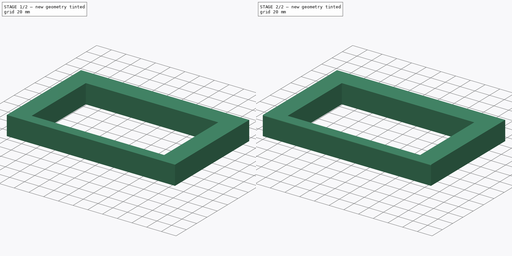
[diagram: build sequence overview — one tinted view per stage of 2, left to right]
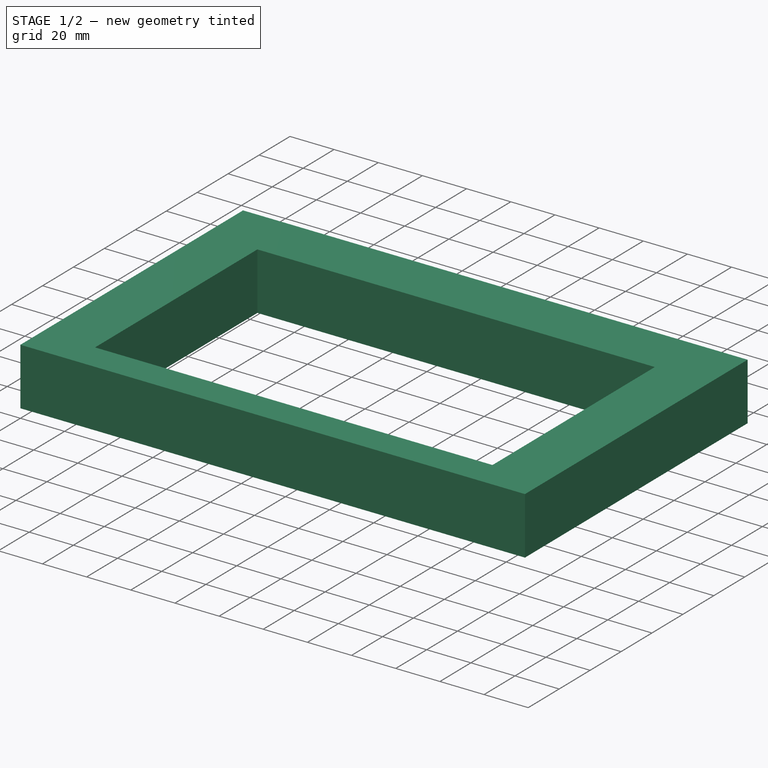
[diagram: stage 1 of 2 — iso view after this stage's code; geometry added in this stage tinted green]
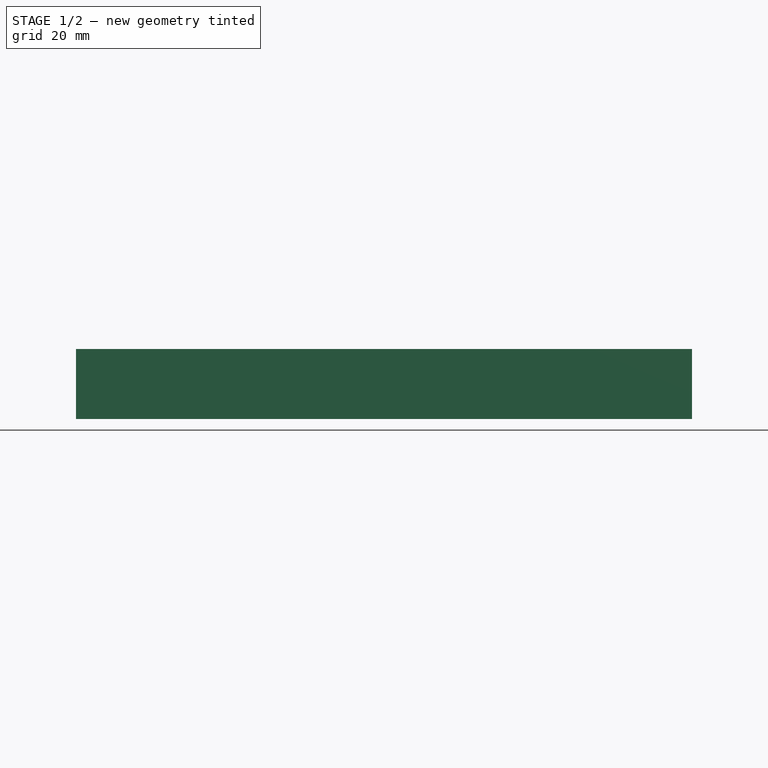
[diagram: stage 1 of 2 — front view after this stage's code; geometry added in this stage tinted green]
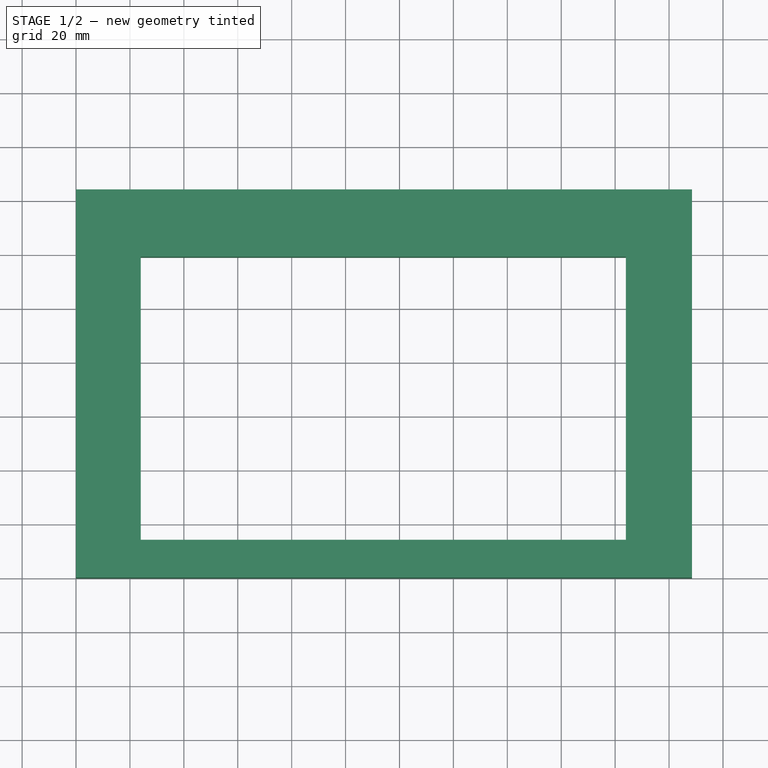
[diagram: stage 1 of 2 — top view after this stage's code; geometry added in this stage tinted green]
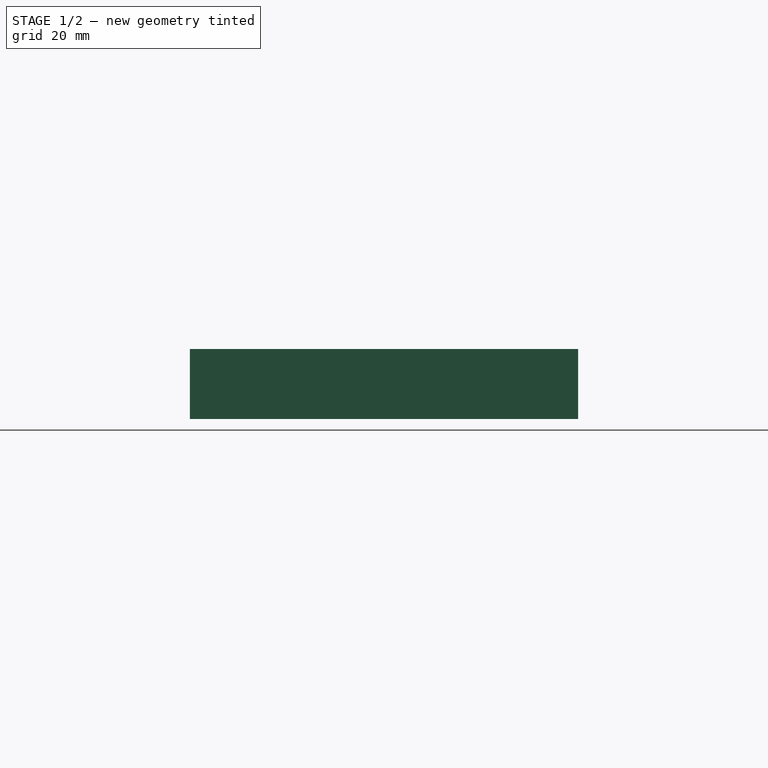
[diagram: stage 1 of 2 — right view after this stage's code; geometry added in this stage tinted green]
FCSTD DOCUMENT  (FreeCAD 0.17R13522 (Git))
Label: BlocGaucheClavierBois
License: All rights reserved
LicenseURL: http://en.wikipedia.org/wiki/All_rights_reserved
objects: Drawing::FeatureViewPython×6, Drawing::FeatureViewPart×3, Sketcher::SketchObject×2, Part::Box×1, PartDesign::Pocket×1, PartDesign::Fillet×1, Drawing::FeatureViewAnnotation×1, Drawing::FeaturePage×1
note: 6 computed .brp shape members not serialized (recipe doc carries the construction recipe); baked Part::Feature solids carry a one-line shape summary decoded from their .brp

FEATURE [Part::Box] Box  label="Cube"
  AttacherType = Attacher::AttachEngine3D
  Height = 26
  Length = 228.5
  Width = 144
FEATURE [Sketcher::SketchObject] Sketch
  MapMode = 5
  Placement = pos=(0,0,0) rot=(1,0,0;3.14159rad)
  Support = -> [Box]
FEATURE [Sketcher::SketchObject] Sketch001
  MapMode = 5
  Placement = pos=(0,0,0) rot=(1,0,0;3.14159rad)
  Support = -> [Box]
  sketch-geometry (4):
    g0: LineSegment StartX=24 StartY=-14 StartZ=0 EndX=204 EndY=-14 EndZ=0
    g1: LineSegment StartX=204 StartY=-14 StartZ=0 EndX=204 EndY=-119 EndZ=0
    g2: LineSegment StartX=204 StartY=-119 StartZ=0 EndX=24 EndY=-119 EndZ=0
    g3: LineSegment StartX=24 StartY=-119 StartZ=0 EndX=24 EndY=-14 EndZ=0
  constraints (12):
    c: Coincident(g0,g1)
    c: Coincident(g1,g2)
    c: Coincident(g2,g3)
    c: Coincident(g3,g0)
    c: Horizontal(g0)
    c: Horizontal(g2)
    c: Vertical(g1)
    c: Vertical(g3)
    c: DistanceY(g0,g-1) = 14
    c: DistanceX(g-1,g0) = 24
    c: DistanceX(g0,g0) = 180
    c: DistanceY(g1,g1) = 105
FEATURE [PartDesign::Pocket] Pocket
  Length = 5
  Length2 = 100
  Profile = -> Sketch001
  Refine = true
  Type = 1
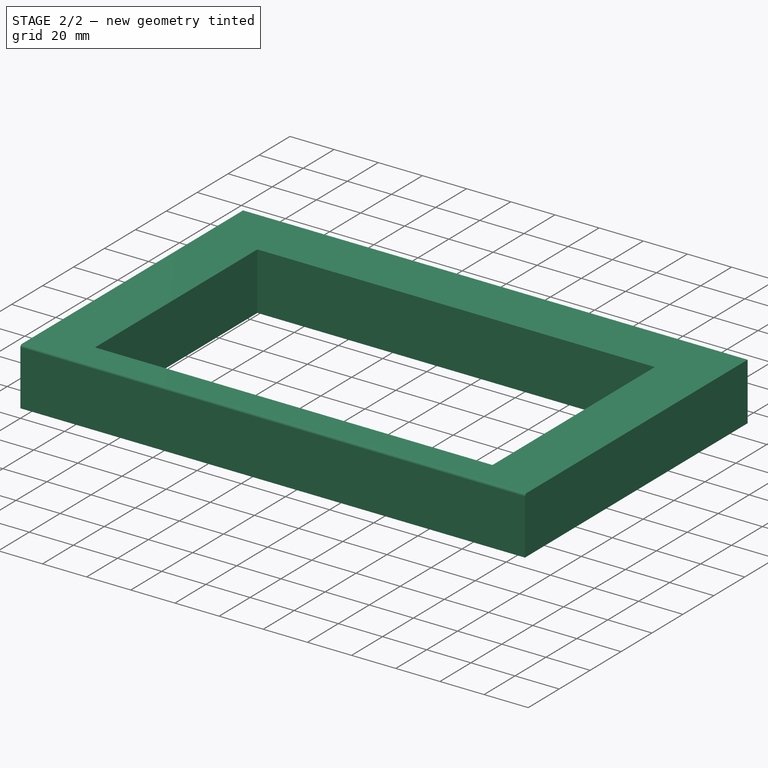
[diagram: stage 2 of 2 — iso view after this stage's code; geometry added in this stage tinted green]
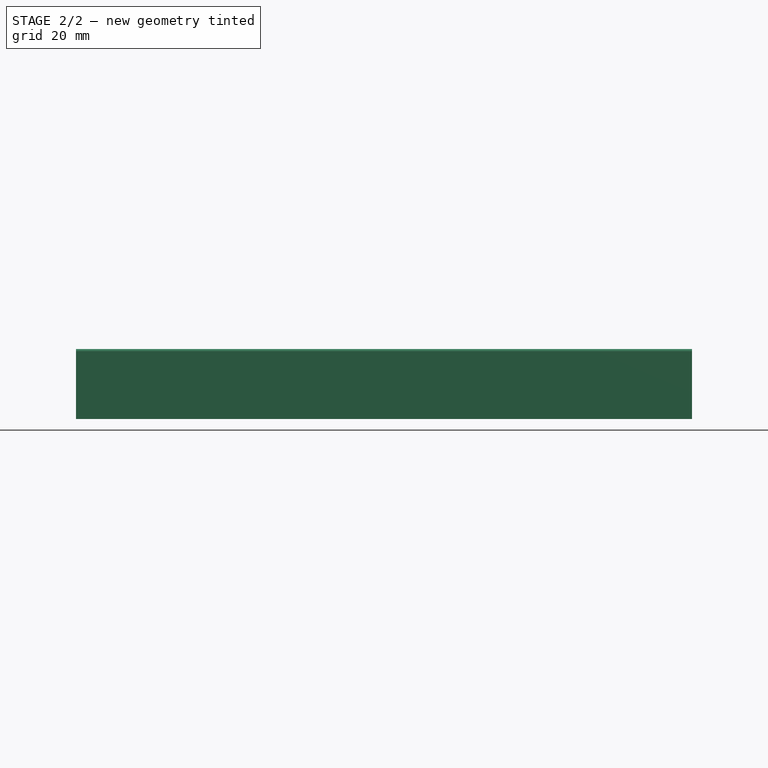
[diagram: stage 2 of 2 — front view after this stage's code; geometry added in this stage tinted green]
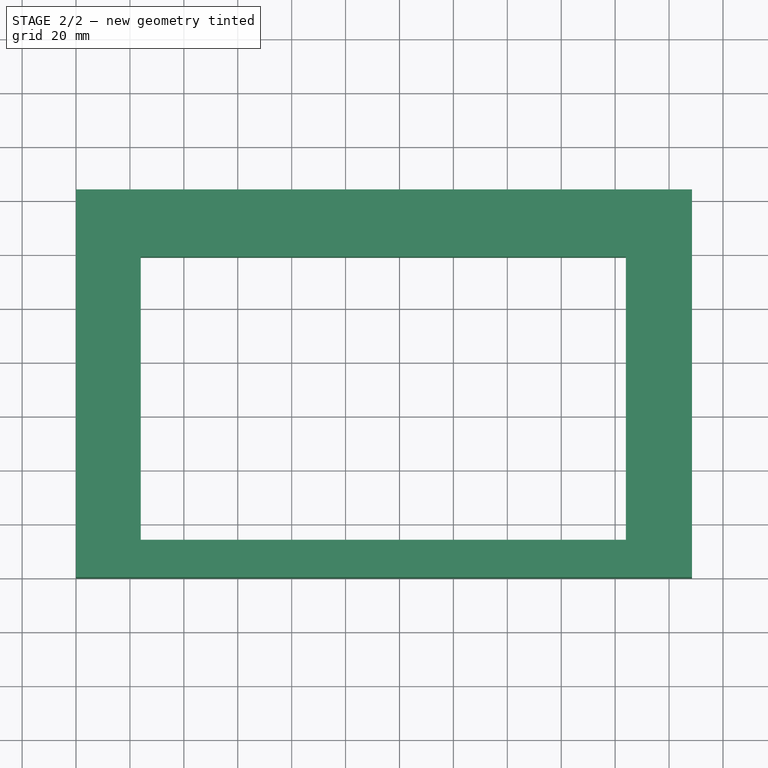
[diagram: stage 2 of 2 — top view after this stage's code; geometry added in this stage tinted green]
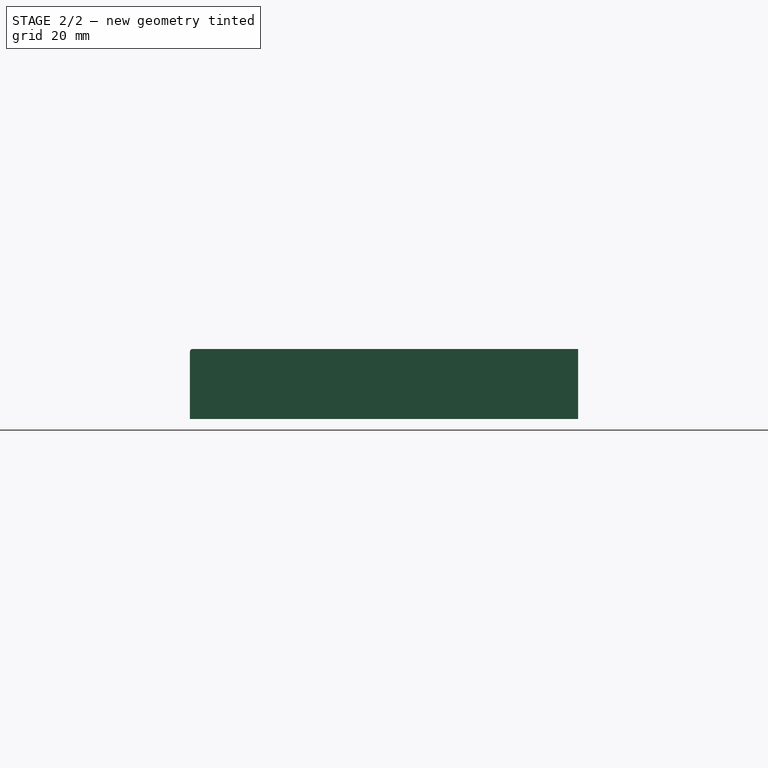
[diagram: stage 2 of 2 — right view after this stage's code; geometry added in this stage tinted green]
FEATURE [PartDesign::Fillet] Fillet
  Base = -> Pocket [Edge7]
  Radius = 1
FEATURE [Drawing::FeatureViewPart] Ortho  label="Ortho_0_0"
  Direction = (0,0,1)
  HiddenWidth = 0.15
  LineWidth = 0.35
  Rotation = 0
  Scale = 0.7
  ShowHiddenLines = true
  ShowSmoothLines = true
  Source = -> Fillet
  Tolerance = 0.05
  ViewResult = <blob: 2214 chars omitted>
  Visible = true
  X = 78.275
  Y = 154
FEATURE [Drawing::FeatureViewPart] Ortho002  label="Ortho_-1_0"
  Direction = (1,0,0)
  HiddenWidth = 0.15
  LineWidth = 0.35
  Rotation = 180
  Scale = 0.7
  ShowHiddenLines = true
  ShowSmoothLines = true
  Source = -> Fillet
  Tolerance = 0.05
  ViewResult = <g id="Ortho_-1_0"\n   transform="rotate(180,59,154) translate(59,154) scale(0.7,0.7)"\n  >\n<g   fill="none"\n   stroke="rgb(0, 0, 0)"\n   stroke-dasharray="0.2,0.1)"\n   stroke-linecap="butt"\n   stroke-linejoin="miter"\n   stroke-width="0.214286"\n   transform="scale(1,-1)"\n  >\n<path id= "1" d=" M 0 0 L 25 0 " />\n<path d="M25 2.22045e-16 A1 1 0 0 0 26 -1" /><path id= "3" d=" M 0 0 L 0 -144 " />\n<path id= "4" d=" M 26 -1 L 26 -144 " />\n<path id= "5" d=" M 0 -144 L 26 -144 " />\n<path id= "6" d=" M 0 -14 L 0 -119 " />\n<path id= "7" d=" M 0 -119 L 0 -14 " />\n<path id= "8" d=" M 26 -119 L 26 -14 " />\n<path id= "9" d=" M 26 -14 L 26 -119 " />\n<path id= "10" d=" M 0 -14 L 26 -14 " />\n<path id= "11" d=" M 0 -14 L 26 -14 " />\n<path id= "12" d=" M 0 -119 L 26 -119 " />\n<path id= "13" d=" M 0 -119 L 26 -119 " />\n</g>\n<g   fill="none"\n   stroke="rgb(0, 0, 0)"\n   stroke-linecap="butt"\n   stroke-linejoin="miter"\n   stroke-width="0.500000"\n   transform="scale(1,-1)"\n  >\n<path id= "1" d=" M 0 0 L 25 0 " />\n<path d="M25 2.22045e-16 A1 1 0 0 0 26 -1" /><path id= "3" d=" M 0 0 L 0 -144 " />\n<path id= "4" d=" M 26 -1 L 26 -144 " />\n<path id= "5" d=" M 0 -144 L 26 -144 " />\n</g>\n</g>
  Visible = true
  X = 59
  Y = 154
FEATURE [Drawing::FeatureViewPart] Ortho003  label="Ortho_0_1"
  Direction = (0,-1,0)
  HiddenWidth = 0.15
  LineWidth = 0.35
  Rotation = 90
  Scale = 0.7
  ShowHiddenLines = true
  ShowSmoothLines = true
  Source = -> Fillet
  Tolerance = 0.05
  ViewResult = <g id="Ortho_0_1"\n   transform="rotate(90,78.275,46.5) translate(78.275,46.5) scale(0.7,0.7)"\n  >\n<g   fill="none"\n   stroke="rgb(0, 0, 0)"\n   stroke-dasharray="0.2,0.1)"\n   stroke-linecap="butt"\n   stroke-linejoin="miter"\n   stroke-width="0.214286"\n   transform="scale(1,-1)"\n  >\n<path id= "1" d=" M 0 0 L -26 0 " />\n<path id= "2" d=" M 0 0 L 0 228.5 " />\n<path id= "3" d=" M 0 24 L 0 204 " />\n<path id= "4" d=" M 0 204 L 0 24 " />\n<path id= "5" d=" M -26 0 L -26 228.5 " />\n<path id= "6" d=" M -26 24 L -26 204 " />\n<path id= "7" d=" M -26 204 L -26 24 " />\n<path id= "8" d=" M 0 228.5 L -26 228.5 " />\n<path id= "9" d=" M 0 204 L -26 204 " />\n<path id= "10" d=" M 0 24 L -26 24 " />\n<path id= "11" d=" M 0 204 L -26 204 " />\n<path id= "12" d=" M 0 24 L -26 24 " />\n</g>\n<g   fill="none"\n   stroke="rgb(0, 0, 0)"\n   stroke-linecap="butt"\n   stroke-linejoin="miter"\n   stroke-width="0.500000"\n   transform="scale(1,-1)"\n  >\n<path id= "1" d=" M 0 0 L -25 0 " />\n<path d="M-25,0 Q-25.1694,0 -25.3303,0  Q-25.4354,0 -25.532,0  Q-25.6257,0 -25.7071,0  Q-25.7445,0 -25.7818,0  Q-25.8143,0 -25.8467,0  Q-25.8738,0 -25.901,0  Q-25.9224,0 -25.9439,0  Q-25.9594,0 -25.9749,0  Q-25.9843,0 -25.9937,0  Q-25.9969,0 -26,0 " /><path id= "3" d=" M 0 228.5 L -25 228.5 " />\n<path id= "4" d=" M 0 0 L 0 228.5 " />\n<path id= "5" d=" M -26 0 L -26 228.5 " />\n<path d="M-25,228.5 Q-25.1694,228.5 -25.3303,228.5  Q-25.4354,228.5 -25.532,228.5  Q-25.6257,228.5 -25.7071,228.5  Q-25.7445,228.5 -25.7818,228.5  Q-25.8143,228.5 -25.8467,228.5  Q-25.8738,228.5 -25.901,228.5  Q-25.9224,228.5 -25.9439,228.5  Q-25.9594,228.5 -25.9749,228.5  Q-25.9843,228.5 -25.9937,228.5  Q-25.9969,228.5 -26,228.5 " /></g>\n<g   fill="none"\n   stroke="rgb(0, 0, 0)"\n   stroke-linecap="butt"\n   stroke-linejoin="miter"\n   stroke-width="0.500000"\n   transform="scale(1,-1)"\n  >\n<path id= "1" d=" M -25 0 L -25 228.5 " />\n</g>\n</g>
  Visible = true
  X = 78.275
  Y = 46.5
FEATURE [Drawing::FeatureViewPython] dim001  # drawing view (typed FeaturePython)
  Rotation = 0
  ViewResult = <g> <line x1="78.275000" y1="24.200000" x2="78.275000" y2="19.000000" style="stroke:rgb(0,0,255);stroke-width:0.30" />\n<line x1="238.225000" y1="24.200000" x2="238.225000" y2="19.000000" style="stroke:rgb(0,0,255);stroke-width:0.30" />\n<line x1="78.275000" y1="20.000000" x2="238.225000" y2="20.000000" style="stroke:rgb(0,0,255);stroke-width:0.30" />\n<polygon points="78.275000,20.000000 81.275000,21.000000 82.275000,20.000000 81.275000,19.000000" style="fill:rgb(0,0,255);stroke:rgb(0,0,255);stroke-width:0" />\n<polygon points="238.225000,20.000000 235.225000,19.000000 234.225000,20.000000 235.225000,21.000000" style="fill:rgb(0,0,255);stroke:rgb(0,0,255);stroke-width:0" />\n<text x="158.250000" y="18.000000" font-family="Verdana" font-size="3.6" fill="rgb(0,0,255)" text-anchor="middle" transform="rotate(0.000000 158.250000,18.000000)" >228</text> </g> 
  Visible = true
  X = 0
  Y = 0
  arrowL1 = 3
  arrowL2 = 1
  arrowW = 2
  arrow_scheme = 0
  autoPlaceOffset = 2
  autoPlaceText = true
  click1_x = 240
  click1_y = 20
  click2_x = 240
  click2_y = 20
  comma_decimal_place = false
  dimension_line_overshoot = 1
  gap_datum_points = 2
  halfDimension_linear = false
  lineColor = rgb(0,0,255)
  strokeWidth = 0.3
  textFormat_linear = %(value)3.0f
  textRenderer_color = rgb(0,0,255)
  textRenderer_family = Verdana
  textRenderer_size = 3.6
  unit_custom_scale = 1
  unit_scheme = 0
FEATURE [Drawing::FeatureViewPython] dim002  # drawing view (typed FeaturePython)
  Rotation = 0
  ViewResult = <g> <line x1="240.225000" y1="52.500000" x2="256.000000" y2="52.500000" style="stroke:rgb(0,0,255);stroke-width:0.30" />\n<line x1="240.225000" y1="154.000000" x2="256.000000" y2="154.000000" style="stroke:rgb(0,0,255);stroke-width:0.30" />\n<line x1="255.000000" y1="52.500000" x2="255.000000" y2="154.000000" style="stroke:rgb(0,0,255);stroke-width:0.30" />\n<polygon points="255.000000,52.500000 254.000000,55.500000 255.000000,56.500000 256.000000,55.500000" style="fill:rgb(0,0,255);stroke:rgb(0,0,255);stroke-width:0" />\n<polygon points="255.000000,154.000000 256.000000,151.000000 255.000000,150.000000 254.000000,151.000000" style="fill:rgb(0,0,255);stroke:rgb(0,0,255);stroke-width:0" />\n<text x="253.000000" y="103.250000" font-family="Verdana" font-size="3.6" fill="rgb(0,0,255)" text-anchor="middle" transform="rotate(-90.000000 253.000000,103.250000)" >145</text> </g> 
  Visible = true
  X = 0
  Y = 0
  arrowL1 = 3
  arrowL2 = 1
  arrowW = 2
  arrow_scheme = 0
  autoPlaceOffset = 2
  autoPlaceText = true
  click1_x = 255
  click1_y = 150
  click2_x = 255
  click2_y = 150
  comma_decimal_place = false
  dimension_line_overshoot = 1
  gap_datum_points = 2
  halfDimension_linear = false
  lineColor = rgb(0,0,255)
  strokeWidth = 0.3
  textFormat_linear = %(value)3.0f
  textRenderer_color = rgb(0,0,255)
  textRenderer_family = Verdana
  textRenderer_size = 3.6
  unit_custom_scale = 1
  unit_scheme = 0
FEATURE [Drawing::FeatureViewPython] dim003  # drawing view (typed FeaturePython)
  Rotation = 0
  ViewResult = <g> <line x1="38.000000" y1="50.500000" x2="38.000000" y2="19.000000" style="stroke:rgb(0,0,255);stroke-width:0.30" />\n<line x1="59.000000" y1="50.500000" x2="59.000000" y2="19.000000" style="stroke:rgb(0,0,255);stroke-width:0.30" />\n<line x1="38.000000" y1="20.000000" x2="59.000000" y2="20.000000" style="stroke:rgb(0,0,255);stroke-width:0.30" />\n<polygon points="38.000000,20.000000 41.000000,21.000000 42.000000,20.000000 41.000000,19.000000" style="fill:rgb(0,0,255);stroke:rgb(0,0,255);stroke-width:0" />\n<polygon points="59.000000,20.000000 56.000000,19.000000 55.000000,20.000000 56.000000,21.000000" style="fill:rgb(0,0,255);stroke:rgb(0,0,255);stroke-width:0" />\n<text x="48.500000" y="18.000000" font-family="Verdana" font-size="3.6" fill="rgb(0,0,255)" text-anchor="middle" transform="rotate(-0.000000 48.500000,18.000000)" > 30</text> </g> 
  Visible = true
  X = 0
  Y = 0
  arrowL1 = 3
  arrowL2 = 1
  arrowW = 2
  arrow_scheme = 0
  autoPlaceOffset = 2
  autoPlaceText = true
  click1_x = 60
  click1_y = 20
  click2_x = 60
  click2_y = 20
  comma_decimal_place = false
  dimension_line_overshoot = 1
  gap_datum_points = 2
  halfDimension_linear = false
  lineColor = rgb(0,0,255)
  strokeWidth = 0.3
  textFormat_linear = %(value)3.0f
  textRenderer_color = rgb(0,0,255)
  textRenderer_family = Verdana
  textRenderer_size = 3.6
  unit_custom_scale = 1
  unit_scheme = 0
FEATURE [Drawing::FeatureViewPython] dim004  # drawing view (typed FeaturePython)
  Rotation = 0
  ViewResult = <g> <line x1="95.075000" y1="68.700000" x2="95.075000" y2="64.000000" style="stroke:rgb(0,0,255);stroke-width:0.30" />\n<line x1="221.075000" y1="68.700000" x2="221.075000" y2="64.000000" style="stroke:rgb(0,0,255);stroke-width:0.30" />\n<line x1="95.075000" y1="65.000000" x2="221.075000" y2="65.000000" style="stroke:rgb(0,0,255);stroke-width:0.30" />\n<polygon points="95.075000,65.000000 98.075000,66.000000 99.075000,65.000000 98.075000,64.000000" style="fill:rgb(0,0,255);stroke:rgb(0,0,255);stroke-width:0" />\n<polygon points="221.075000,65.000000 218.075000,64.000000 217.075000,65.000000 218.075000,66.000000" style="fill:rgb(0,0,255);stroke:rgb(0,0,255);stroke-width:0" />\n<text x="158.075000" y="63.000000" font-family="Verdana" font-size="3.6" fill="rgb(0,0,255)" text-anchor="middle" transform="rotate(0.000000 158.075000,63.000000)" >180</text> </g> 
  Visible = true
  X = 0
  Y = 0
  arrowL1 = 3
  arrowL2 = 1
  arrowW = 2
  arrow_scheme = 0
  autoPlaceOffset = 2
  autoPlaceText = true
  click1_x = 205
  click1_y = 65
  click2_x = 205
  click2_y = 65
  comma_decimal_place = false
  dimension_line_overshoot = 1
  gap_datum_points = 2
  halfDimension_linear = false
  lineColor = rgb(0,0,255)
  strokeWidth = 0.3
  textFormat_linear = %(value)3.0f
  textRenderer_color = rgb(0,0,255)
  textRenderer_family = Verdana
  textRenderer_size = 3.6
  unit_custom_scale = 1
  unit_scheme = 0
FEATURE [Drawing::FeatureViewPython] dim005  # drawing view (typed FeaturePython)
  Rotation = 0
  ViewResult = <g> \n  <line x1="223.075000" y1="70.700000" x2="231.000000" y2="70.700000" style="stroke:rgb(0,0,255);stroke-width:0.30" />\n<line x1="223.075000" y1="144.200000" x2="231.000000" y2="144.200000" style="stroke:rgb(0,0,255);stroke-width:0.30" />\n<line x1="230.000000" y1="70.700000" x2="230.000000" y2="144.200000" style="stroke:rgb(0,0,255);stroke-width:0.30" /> \n  <polygon points="230.000000,144.200000 231.000000,141.200000 230.000000,140.200000 229.000000,141.200000" style="fill:rgb(0,0,255);stroke:rgb(0,0,255);stroke-width:0" /><polygon points="230.000000,70.700000 229.000000,73.700000 230.000000,74.700000 231.000000,73.700000" style="fill:rgb(0,0,255);stroke:rgb(0,0,255);stroke-width:0" /> \n  <text x="228.000000" y="107.450000" font-family="Verdana" font-size="3.6" fill="rgb(0,0,255)" text-anchor="middle" transform="rotate(-90.000000 228.000000,107.450000)" >105</text> </g>
  Visible = true
  X = 0
  Y = 0
  arrowL1 = 3
  arrowL2 = 1
  arrowW = 2
  arrow_scheme = 0
  autoPlaceOffset = 2
  autoPlaceText = true
  click1_x = 230
  click1_y = 90
  click2_x = 230
  click2_y = 90
  comma_decimal_place = false
  dimension_line_overshoot = 1
  gap_datum_points = 2
  halfDimension_linear = false
  lineColor = rgb(0,0,255)
  strokeWidth = 0.3
  textFormat_linear = %(value)3.0f
  textRenderer_color = rgb(0,0,255)
  textRenderer_family = Verdana
  textRenderer_size = 3.6
  unit_custom_scale = 1
  unit_scheme = 0
FEATURE [Drawing::FeatureViewAnnotation] Annotation
  Font = Sans
  Rotation = 0
  Scale = 7
  ViewResult = <g transform="translate(10,10) rotate(0)">\n<text id="Annotation"\n font-family="Sans"\n font-size="7"\n fill="#000000">\n<tspan x="0" dy="1em"></tspan>\n</text>\n</g>
  Visible = true
  X = 10
  Y = 10
FEATURE [Drawing::FeatureViewPython] noteCircle001  # drawing view (typed FeaturePython)
  Rotation = 0
  ViewResult = <g> <line x1="65.000000" y1="165.000000" x2="78.275000" y2="153.567457" style="stroke:rgb(0,0,255);stroke-width:0.30" />\n<line x1="65.000000" y1="165.000000" x2="65.000000" y2="165.000000" style="stroke:rgb(0,0,255);stroke-width:0.30" />\n <circle cx ="65.000000" cy ="165.000000" r="4.500000" stroke="rgb(0,0,255)" fill="rgb(255,255,255)" /> \n<text x="63.500000" y="166.500000" font-family="inherit" font-size="5" fill="rgb(0,150,0)" text-anchor="inherit"  >1</text> </g>
  Visible = true
  X = 0
  Y = 0
  click1_x = 65
  click1_y = 165
  click2_x = 65
  click2_y = 170
  lineColor = rgb(0,0,255)
  noteCircle_fill = rgb(255,255,255)
  noteCircle_radius = 4.5
  noteText = 1
  strokeWidth = 0.3
  textRenderer_noteCircle_color = rgb(0,150,0)
  textRenderer_noteCircle_family = inherit
  textRenderer_noteCircle_size = 5
FEATURE [Drawing::FeaturePage] Page
  EditableTexts = GB | Bloc gauche clavier | 1 : congé rayon 1mm | Pièce en 2 exemplaires | A4 | X / Y | 7/10 | PN | DN | 08/04/2018 | REV A
  Group = -> [Ortho,Ortho002,Ortho003,dim001,dim002,dim003,dim004,dim005,Annotation,noteCircle001]
  Template = <path>
note: 1 file-system path scrubbed to <path> (originals preserved in the JSON sidecar)
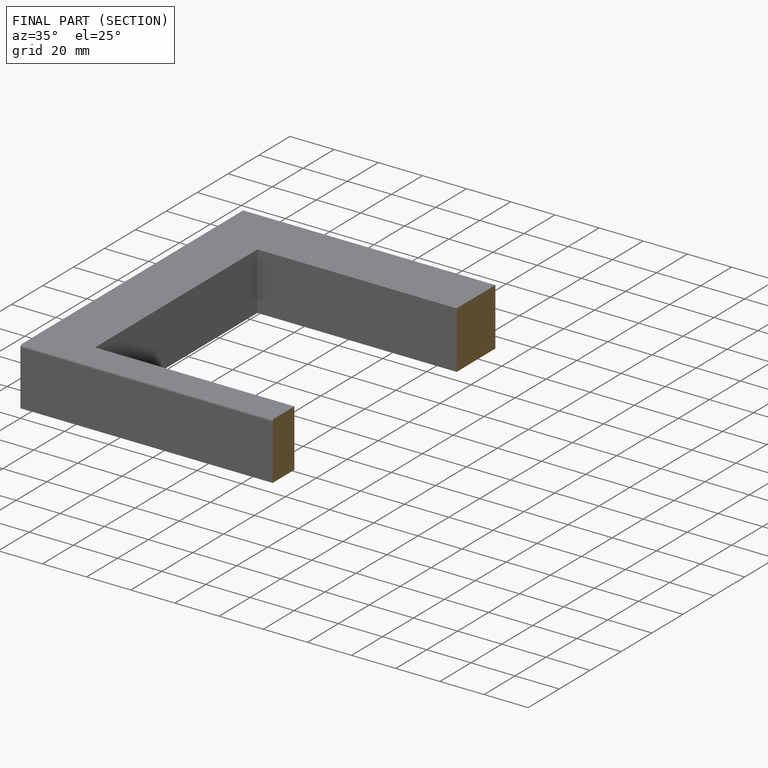
[diagram: finished part — half-section view (interior)]
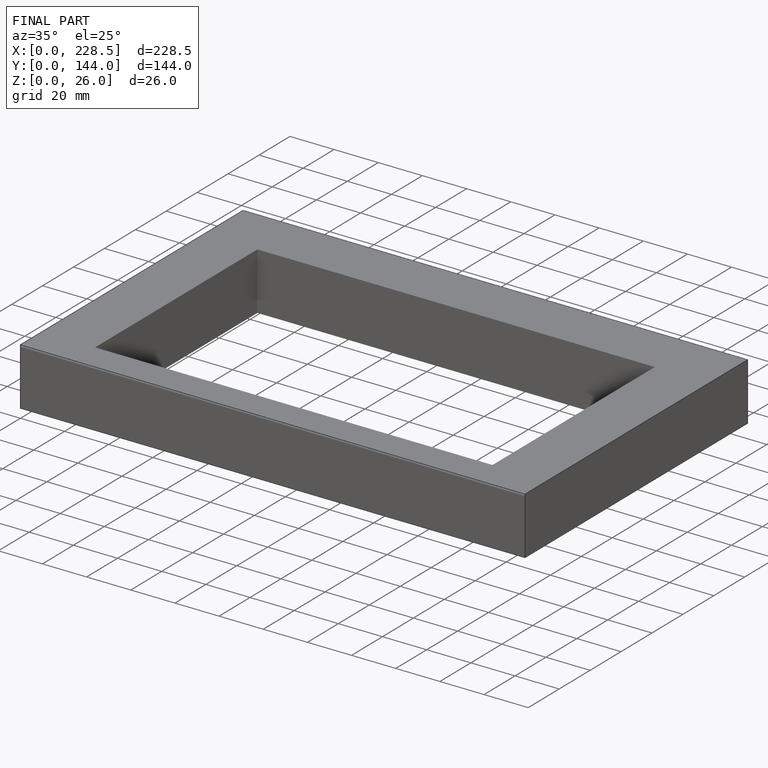
[diagram: finished part — iso view with bounding-box wireframe]
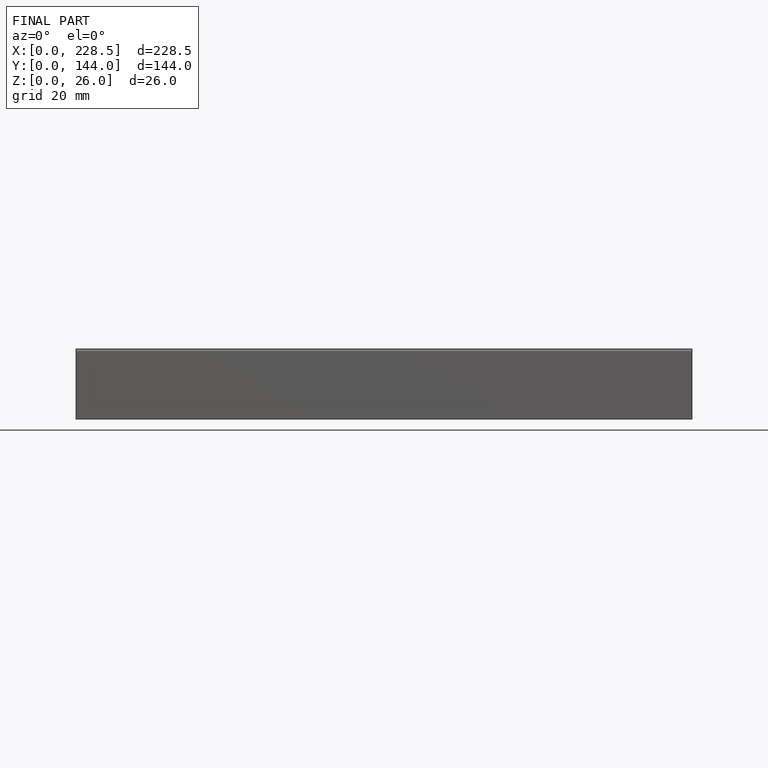
[diagram: finished part — front view with bounding-box wireframe]
